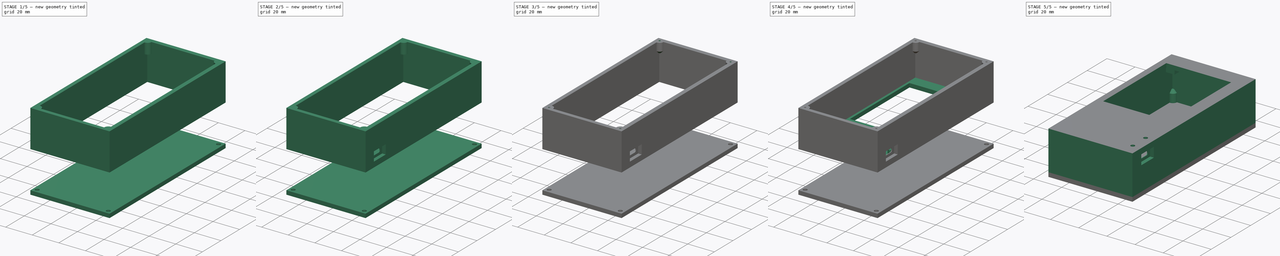
[diagram: build sequence overview — one tinted view per stage of 5, left to right]
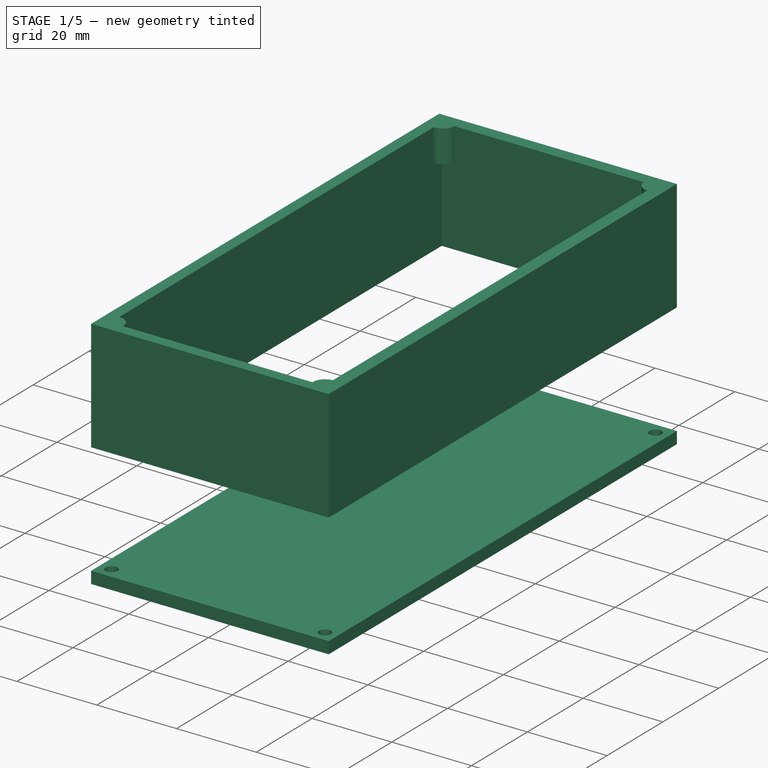
[diagram: stage 1 of 5 — iso view after this stage's code; geometry added in this stage tinted green]
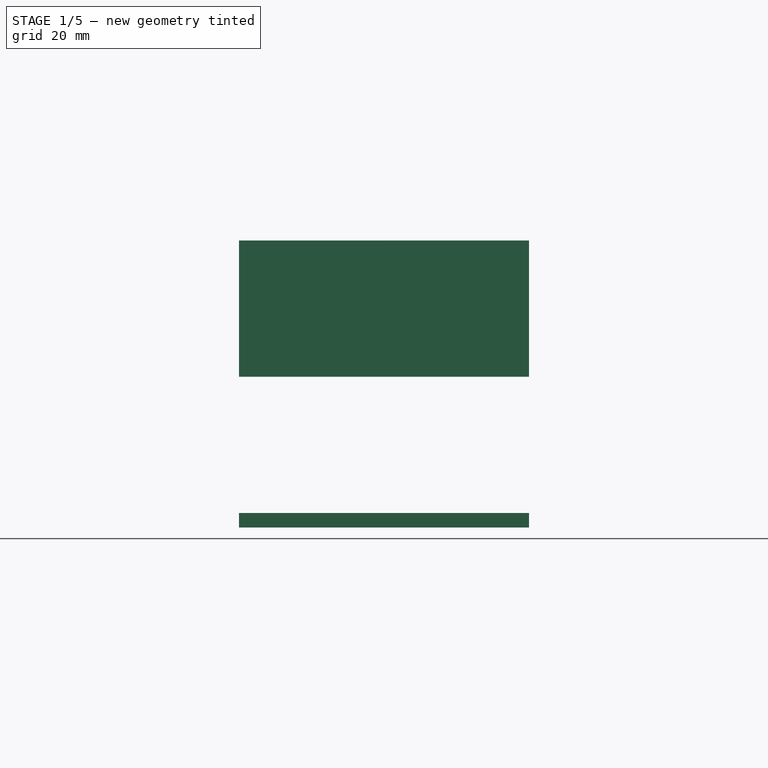
[diagram: stage 1 of 5 — front view after this stage's code; geometry added in this stage tinted green]
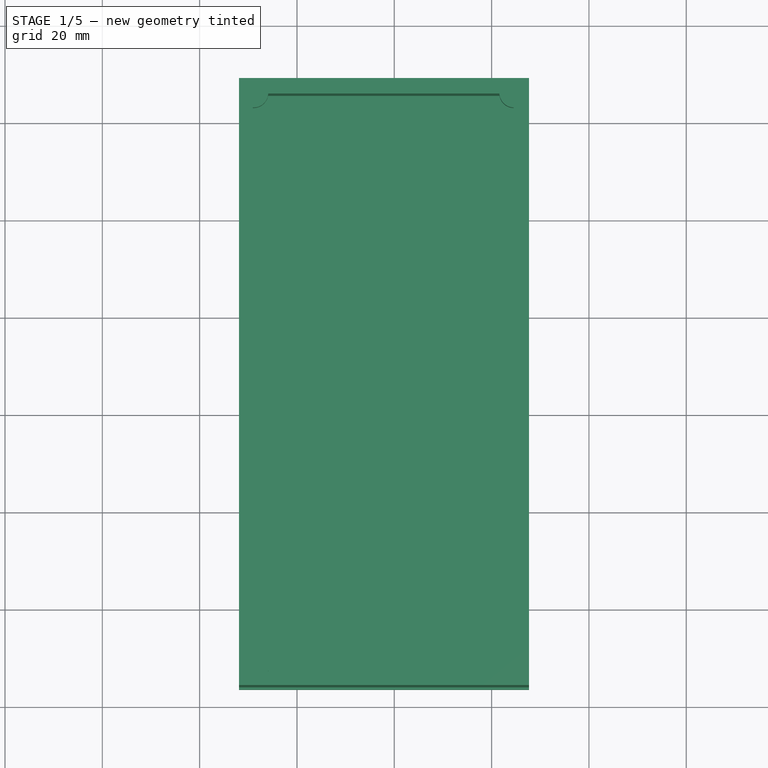
[diagram: stage 1 of 5 — top view after this stage's code; geometry added in this stage tinted green]
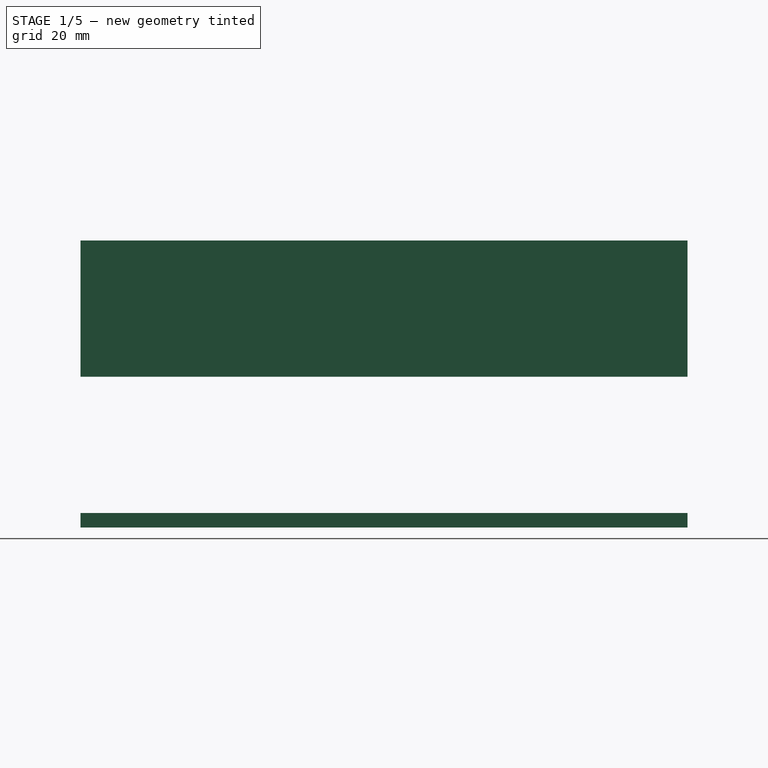
[diagram: stage 1 of 5 — right view after this stage's code; geometry added in this stage tinted green]
FCSTD DOCUMENT  (FreeCAD 0.16RUnknown)
Label: ili79341-Nodemcu
License: All rights reserved
LicenseURL: http://en.wikipedia.org/wiki/All_rights_reserved
objects: Sketcher::SketchObject×12, Part::Extrusion×10, Part::Cut×4, Part::MultiFuse×2, Part::Chamfer×1, App::DocumentObjectGroup×1, Part::Mirroring×1
note: 30 computed .brp shape members not serialized (recipe doc carries the construction recipe); baked Part::Feature solids carry a one-line shape summary decoded from their .brp

FEATURE [Sketcher::SketchObject] Sketch003  label="FrontendWalls"
  sketch-geometry (11):
    g0: GeomPoint [constr] X=35.9164 Y=125.182 Z=0
    g1: LineSegment StartX=67.688 StartY=3.55323 StartZ=0 EndX=8.08455 EndY=3.55323 EndZ=0
    g2: LineSegment StartX=8.08455 StartY=3.55323 StartZ=0 EndX=8.08455 EndY=128.301 EndZ=0
    g3: LineSegment StartX=8.08455 StartY=128.301 StartZ=0 EndX=67.688 EndY=128.301 EndZ=0
    g4: LineSegment StartX=67.688 StartY=128.301 StartZ=0 EndX=67.688 EndY=12.5045 EndZ=0
    g5: LineSegment StartX=10.913 StartY=6.38166 StartZ=0 EndX=64.517 EndY=6.38166 EndZ=0
    g6: LineSegment StartX=64.517 StartY=6.38166 StartZ=0 EndX=64.517 EndY=14.5045 EndZ=0
    g7: LineSegment StartX=64.517 StartY=125.13 StartZ=0 EndX=10.913 EndY=125.13 EndZ=0
    g8: LineSegment StartX=10.913 StartY=125.13 StartZ=0 EndX=10.913 EndY=6.38166 EndZ=0
    g9: LineSegment StartX=67.688 StartY=12.5045 StartZ=0 EndX=67.688 EndY=3.55323 EndZ=0
    g10: LineSegment StartX=64.517 StartY=14.5045 StartZ=0 EndX=64.517 EndY=125.13 EndZ=0
  constraints (22):
    c: Coincident(g1,g2)
    c: Coincident(g2,g3)
    c: Coincident(g3,g4)
    c: Coincident(g9,g1)
    c: Horizontal(g1)
    c: Horizontal(g3)
    c: Vertical(g2)
    c: Vertical(g4)
    c: DistanceX(g1,g1) = 59.6035
    c: DistanceY(g9,g4) = 124.748
    c: Coincident(g5,g6)
    c: Coincident(g10,g7)
    c: Coincident(g7,g8)
    c: Coincident(g8,g5)
    c: Horizontal(g5)
    c: Horizontal(g7)
    c: Vertical(g6)
    c: Vertical(g8)
    c: Tangent(g4,g9)
    c: Tangent(g6,g10)
    c: Coincident(g4,g9)
    c: Coincident(g6,g10)
FEATURE [Part::Extrusion] Extrude001
  Base = -> Sketch003
  Dir = (0,0,28)
  Solid = true
FEATURE [Sketcher::SketchObject] Sketch004  label="usb-input"
  Placement = pos=(0,0,4) rot=(0,0,1;0rad)
  sketch-geometry (6):
    g0: LineSegment StartX=65.0162 StartY=23.2127 StartZ=0 EndX=65.0162 EndY=25.2127 EndZ=0
    g1: LineSegment StartX=65.0162 StartY=25.2127 StartZ=0 EndX=67.688 EndY=25.2127 EndZ=0
    g2: LineSegment StartX=65.0162 StartY=14.5019 StartZ=0 EndX=65.0162 EndY=12.5019 EndZ=0
    g3: LineSegment StartX=65.0162 StartY=12.5019 StartZ=0 EndX=67.688 EndY=12.5019 EndZ=0
    g4: LineSegment StartX=67.688 StartY=25.2127 StartZ=0 EndX=67.688 EndY=12.5019 EndZ=0
    g5: LineSegment StartX=65.0162 StartY=23.2127 StartZ=0 EndX=65.0162 EndY=14.5019 EndZ=0
  constraints (15):
    c: Vertical(g0)
    c: Coincident(g1,g0)
    c: Horizontal(g1)
    c: Vertical(g2)
    c: Coincident(g3,g2)
    c: Horizontal(g3)
    c: DistanceY(g2,g2) = 2
    c: DistanceY(g0,g0) = 2
    c: Coincident(g4,g3)
    c: Vertical(g4)
    c: DistanceY(g4,g4) = 12.7108
    c: Coincident(g5,g0)
    c: Coincident(g5,g2)
    c: Vertical(g5)
    c: Coincident(g1,g4)
FEATURE [Part::Extrusion] Extrude003
  Base = -> Sketch004
  Dir = (0,0,7)
  Solid = true
FEATURE [Sketcher::SketchObject] Sketch039  label="Screw-plate"
  Placement = pos=(0,0,20) rot=(0,0,1;0rad)
  sketch-geometry (4):
    g0: Circle CenterX=11.1123 CenterY=6.56493 CenterZ=0 NormalX=0 NormalY=0 NormalZ=1 Radius=3
    g1: Circle CenterX=64.6256 CenterY=6.57305 CenterZ=0 NormalX=0 NormalY=0 NormalZ=1 Radius=3
    g2: Circle CenterX=11.0982 CenterY=125.264 CenterZ=0 NormalX=0 NormalY=0 NormalZ=1 Radius=3
    g3: Circle CenterX=64.5919 CenterY=125.261 CenterZ=0 NormalX=0 NormalY=0 NormalZ=1 Radius=3
  constraints (4):
    c: Radius(g2) = 3
    c: Radius(g3) = 3
    c: Radius(g1) = 3
    c: Radius(g0) = 3
FEATURE [Part::Extrusion] Extrude014
  Base = -> Sketch039
  Dir = (0,0,8)
  Solid = true
FEATURE [Sketcher::SketchObject] Sketch043
  sketch-geometry (9):
    g0: Circle CenterX=11.0731 CenterY=6.58019 CenterZ=0 NormalX=0 NormalY=0 NormalZ=1 Radius=1.5
    g1: Circle CenterX=64.6617 CenterY=6.5442 CenterZ=0 NormalX=0 NormalY=0 NormalZ=1 Radius=1.5
    g2: Circle CenterX=11.0879 CenterY=125.308 CenterZ=0 NormalX=0 NormalY=0 NormalZ=1 Radius=1.5
    g3: Circle CenterX=64.5669 CenterY=125.115 CenterZ=0 NormalX=0 NormalY=0 NormalZ=1 Radius=1.5
    g4: LineSegment StartX=67.688 StartY=3.55323 StartZ=0 EndX=8.08455 EndY=3.55323 EndZ=0
    g5: LineSegment StartX=8.08455 StartY=3.55323 StartZ=0 EndX=8.08455 EndY=128.301 EndZ=0
    g6: LineSegment StartX=8.08455 StartY=128.301 StartZ=0 EndX=67.688 EndY=128.301 EndZ=0
    g7: LineSegment StartX=67.688 StartY=128.301 StartZ=0 EndX=67.688 EndY=12.5045 EndZ=0
    g8: LineSegment StartX=67.688 StartY=12.5045 StartZ=0 EndX=67.688 EndY=3.55323 EndZ=0
  constraints (16):
    c: Radius(g0) = 1.5
    c: Radius(g1) = 1.5
    c: Radius(g2) = 1.5
    c: Radius(g3) = 1.5
    c: Coincident(g4,g5)
    c: Coincident(g5,g6)
    c: Coincident(g6,g7)
    c: Coincident(g8,g4)
    c: Horizontal(g4)
    c: Horizontal(g6)
    c: Vertical(g5)
    c: Vertical(g7)
    c: DistanceX(g4,g4) = 59.6035
    c: DistanceY(g8,g7) = 124.748
    c: Tangent(g7,g8)
    c: Coincident(g7,g8)
FEATURE [Part::Extrusion] Extrude016  label="Backplate"
  Base = -> Sketch043
  Dir = (0,0,3)
  Placement = pos=(0,0,-31) rot=(0,0,1;0rad)
  Solid = true
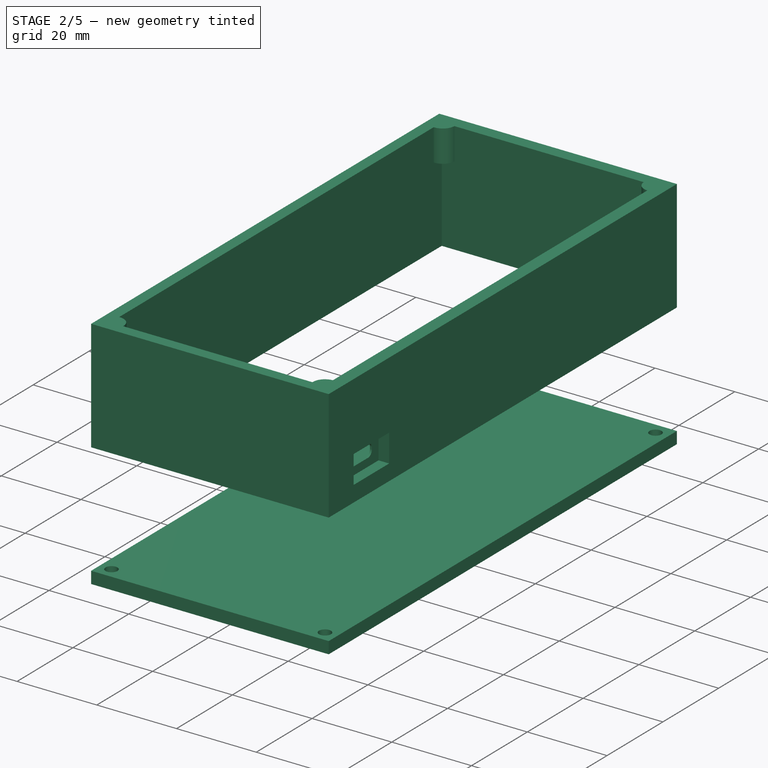
[diagram: stage 2 of 5 — iso view after this stage's code; geometry added in this stage tinted green]
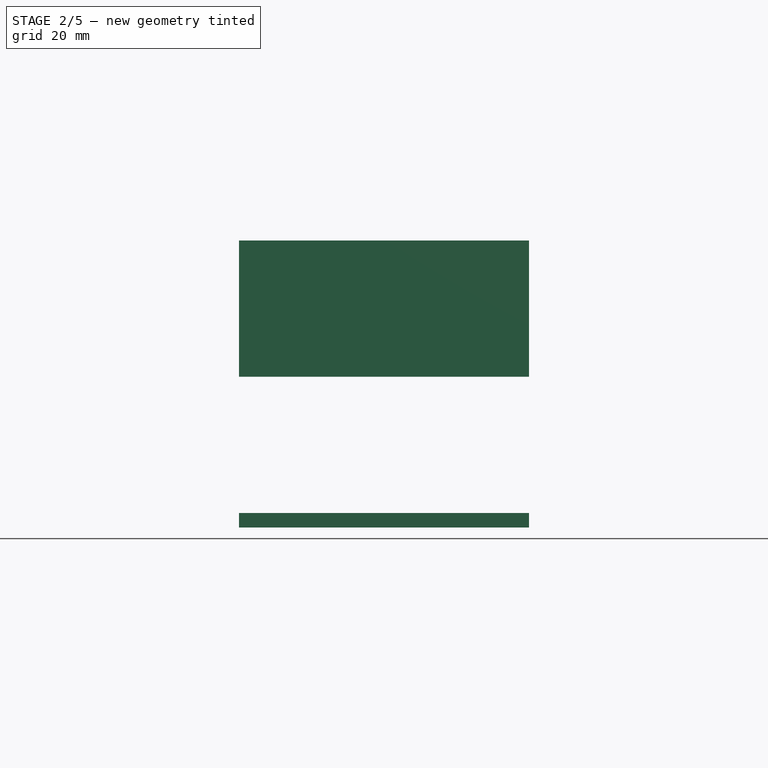
[diagram: stage 2 of 5 — front view after this stage's code; geometry added in this stage tinted green]
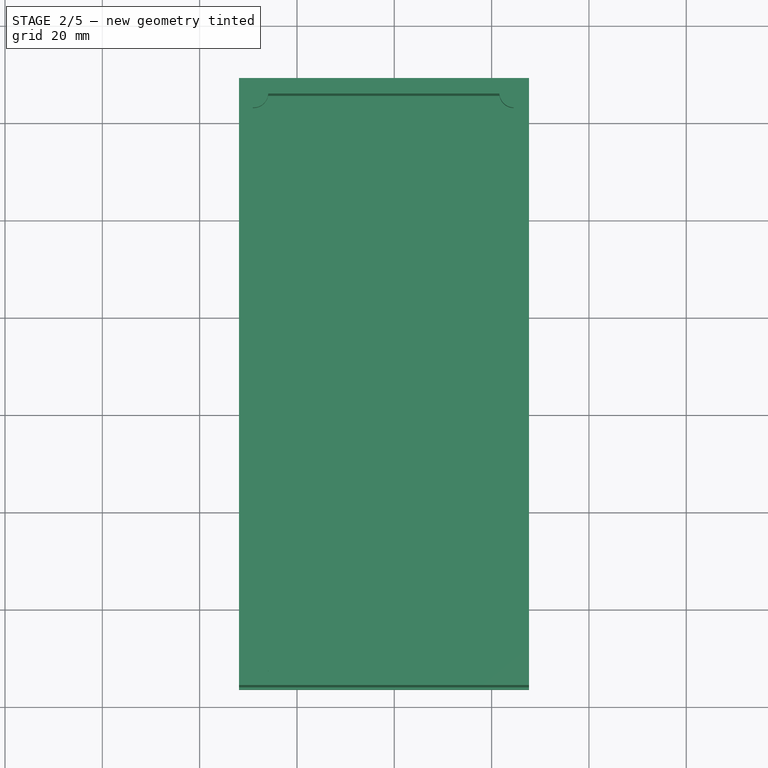
[diagram: stage 2 of 5 — top view after this stage's code; geometry added in this stage tinted green]
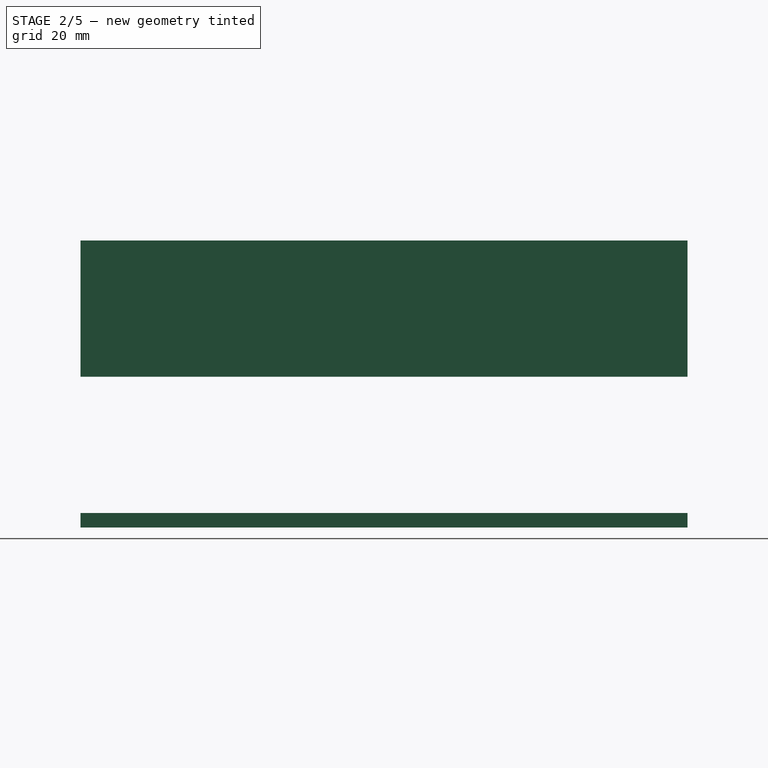
[diagram: stage 2 of 5 — right view after this stage's code; geometry added in this stage tinted green]
FEATURE [Sketcher::SketchObject] Sketch031  label="Usb-microB"
  Placement = pos=(61,14.84,6) rot=(0.57735,0.57735,0.57735;2.0944rad)
  sketch-geometry (8):
    g0: LineSegment StartX=6.85371 StartY=3.00447 StartZ=0 EndX=1.14803 EndY=3.00447 EndZ=0
    g1: LineSegment StartX=-0.00271516 StartY=1.85373 StartZ=0 EndX=-0.00271516 EndY=1.4004 EndZ=0
    g2: LineSegment StartX=1.38664 StartY=0.0110434 StartZ=0 EndX=6.6151 EndY=0.0110434 EndZ=0
    g3: LineSegment StartX=8.00445 StartY=1.4004 StartZ=0 EndX=8.00445 EndY=1.85373 EndZ=0
    g4: ArcOfCircle CenterX=6.6151 CenterY=1.4004 CenterZ=0 NormalX=0 NormalY=0 NormalZ=1 Radius=1.38935 StartAngle=4.71239 EndAngle=6.28319
    g5: ArcOfCircle CenterX=1.38664 CenterY=1.4004 CenterZ=0 NormalX=0 NormalY=0 NormalZ=1 Radius=1.38935 StartAngle=3.14159 EndAngle=4.71239
    g6: ArcOfCircle CenterX=1.14803 CenterY=1.85373 CenterZ=0 NormalX=0 NormalY=0 NormalZ=1 Radius=1.15074 StartAngle=1.5708 EndAngle=3.14159
    g7: ArcOfCircle CenterX=6.85371 CenterY=1.85373 CenterZ=0 NormalX=0 NormalY=0 NormalZ=1 Radius=1.15074 StartAngle=0 EndAngle=1.5708
  constraints (17):
    c: Horizontal(g0)
    c: Horizontal(g2)
    c: Vertical(g1)
    c: Vertical(g3)
    c: Tangent(g3,g4) = -1.5708
    c: Tangent(g2,g4) = -1.5708
    c: Tangent(g2,g5) = -1.5708
    c: Tangent(g1,g5) = -1.5708
    c: Tangent(g0,g6) = -1.5708
    c: Tangent(g1,g6) = -1.5708
    c: Tangent(g0,g7) = -1.5708
    c: Tangent(g3,g7) = -1.5708
    c: DistanceY(g5,g4) = 0
    c: DistanceY(g6,g7) = 0
    c: DistanceY(g2,g0) = 2.99343
    c: DistanceX(g1,g3) = 8.00717
    c: DistanceX(g2,g2) = 5.22846
FEATURE [Part::Extrusion] Extrude006
  Base = -> Sketch031
  Dir = (10,0,0)
  Solid = true
FEATURE [Part::Cut] Cut  label="Walls"
  Base = -> Extrude001
  Tool = -> Extrude003
FEATURE [Part::Cut] Cut001
  Base = -> Cut
  Tool = -> Extrude006
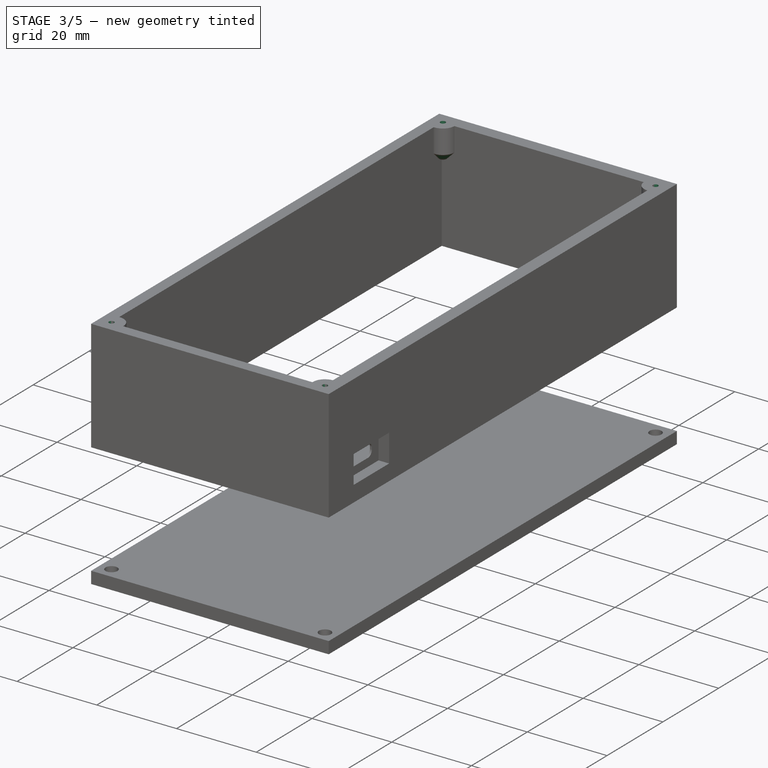
[diagram: stage 3 of 5 — iso view after this stage's code; geometry added in this stage tinted green]
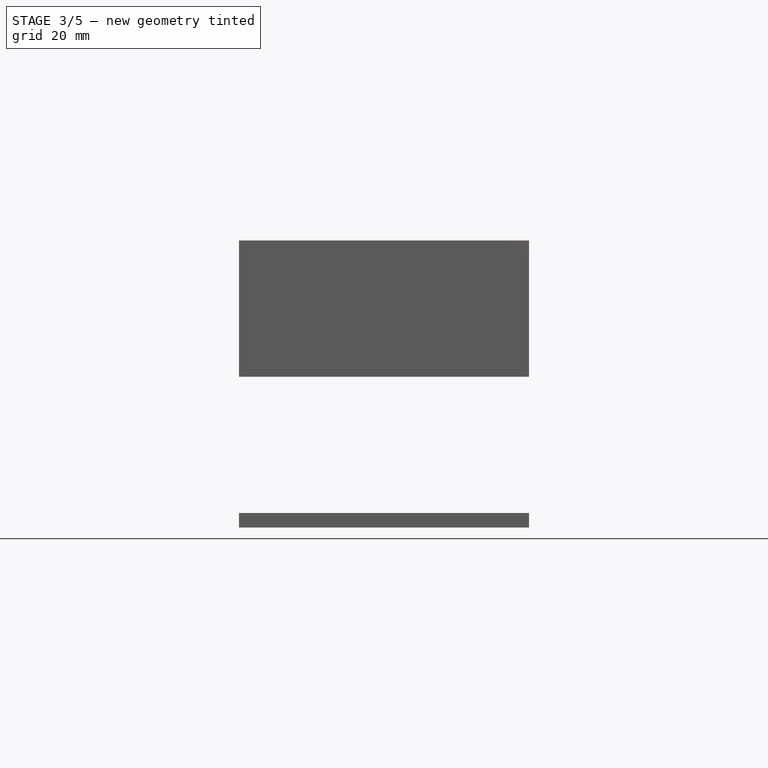
[diagram: stage 3 of 5 — front view after this stage's code; geometry added in this stage tinted green]
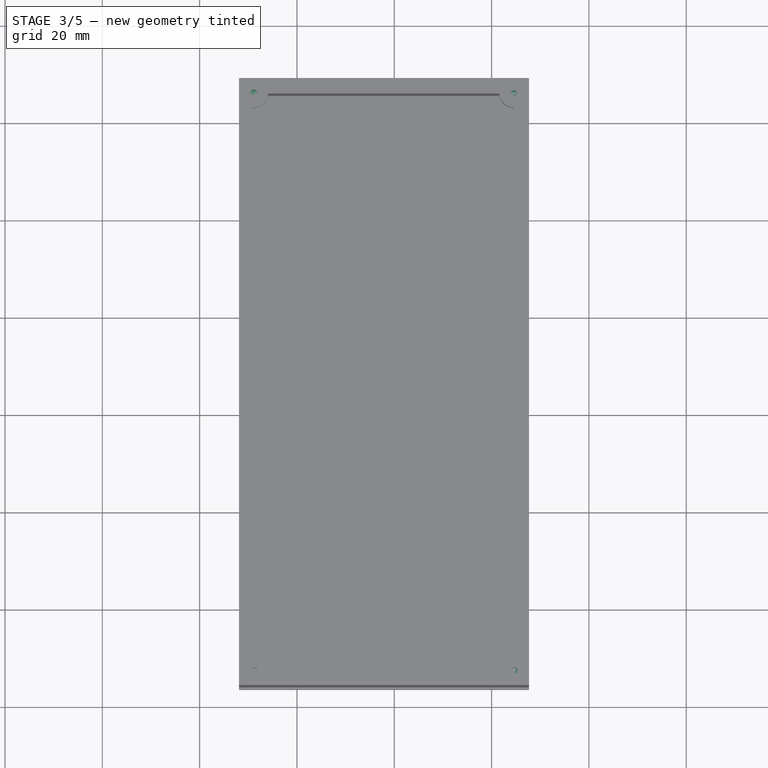
[diagram: stage 3 of 5 — top view after this stage's code; geometry added in this stage tinted green]
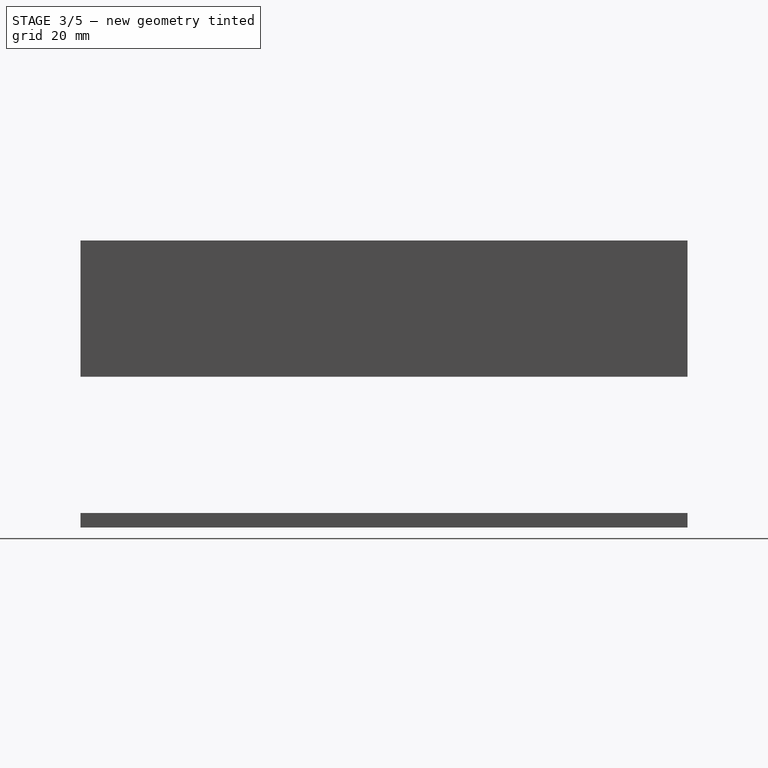
[diagram: stage 3 of 5 — right view after this stage's code; geometry added in this stage tinted green]
FEATURE [Sketcher::SketchObject] Sketch040  label="Screw-plate-holes"
  Placement = pos=(0,0,24) rot=(0,0,1;0rad)
  sketch-geometry (4):
    g0: Circle CenterX=11.0731 CenterY=6.58019 CenterZ=0 NormalX=0 NormalY=0 NormalZ=1 Radius=0.65
    g1: Circle CenterX=64.6617 CenterY=6.5442 CenterZ=0 NormalX=0 NormalY=0 NormalZ=1 Radius=0.65
    g2: Circle CenterX=11.0879 CenterY=125.308 CenterZ=0 NormalX=0 NormalY=0 NormalZ=1 Radius=0.65
    g3: Circle CenterX=64.5669 CenterY=125.115 CenterZ=0 NormalX=0 NormalY=0 NormalZ=1 Radius=0.65
  constraints (4):
    c: Radius(g0) = 0.65
    c: Radius(g1) = 0.65
    c: Radius(g2) = 0.65
    c: Radius(g3) = 0.65
FEATURE [Part::Extrusion] Extrude015
  Base = -> Sketch040
  Dir = (0,0,5)
  Solid = true
FEATURE [Part::MultiFuse] Fusion
  Shapes = -> [Extrude014,Cut001]
FEATURE [Part::Cut] Cut003
  Base = -> Fusion
  Tool = -> Extrude015
FEATURE [Part::Chamfer] Chamfer  label="Chamfer-Walls"
  Base = -> Cut003
  Edges = 4 edges r=2: [Edge106,Edge111,Edge112,Edge122]
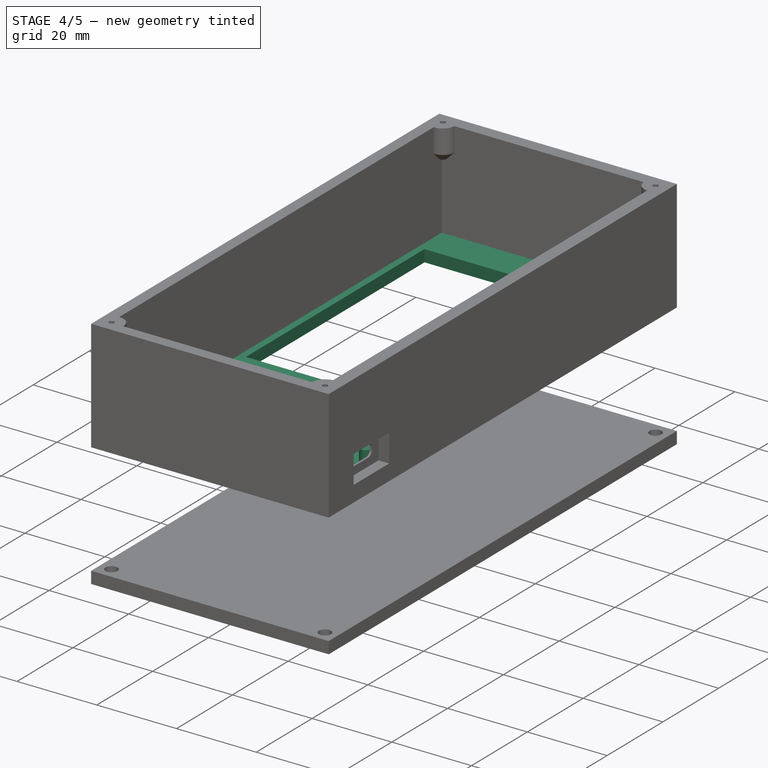
[diagram: stage 4 of 5 — iso view after this stage's code; geometry added in this stage tinted green]
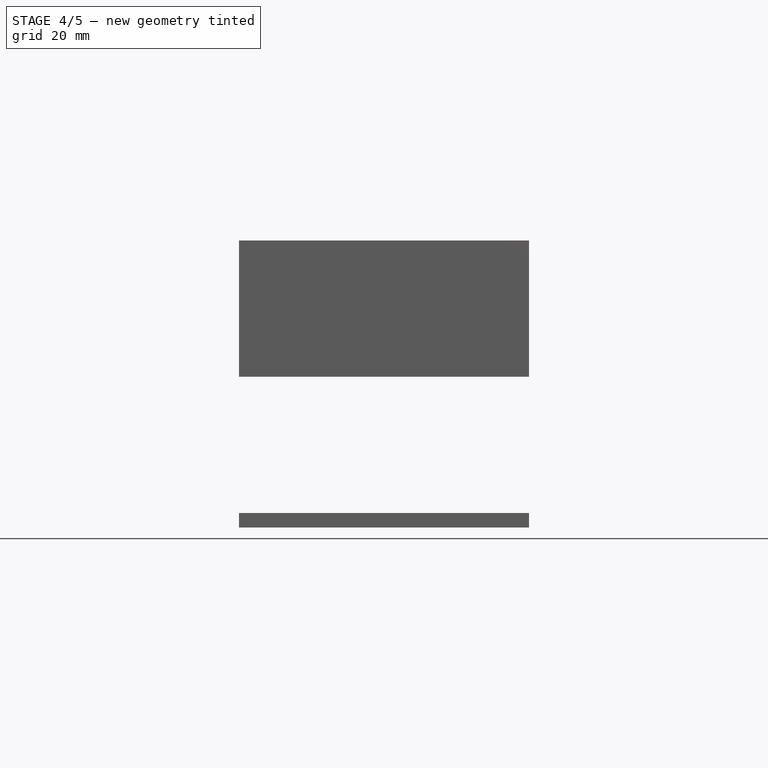
[diagram: stage 4 of 5 — front view after this stage's code; geometry added in this stage tinted green]
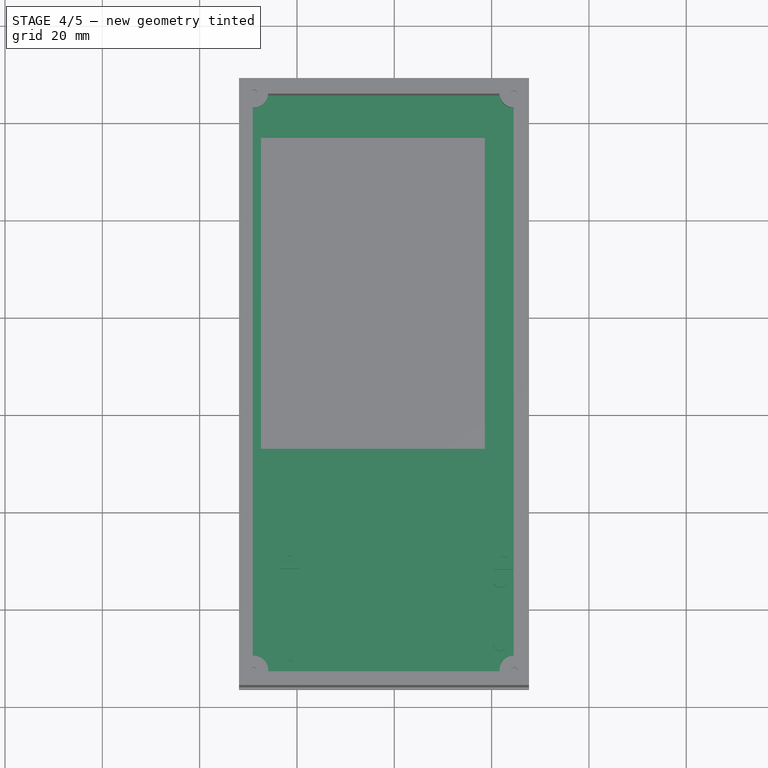
[diagram: stage 4 of 5 — top view after this stage's code; geometry added in this stage tinted green]
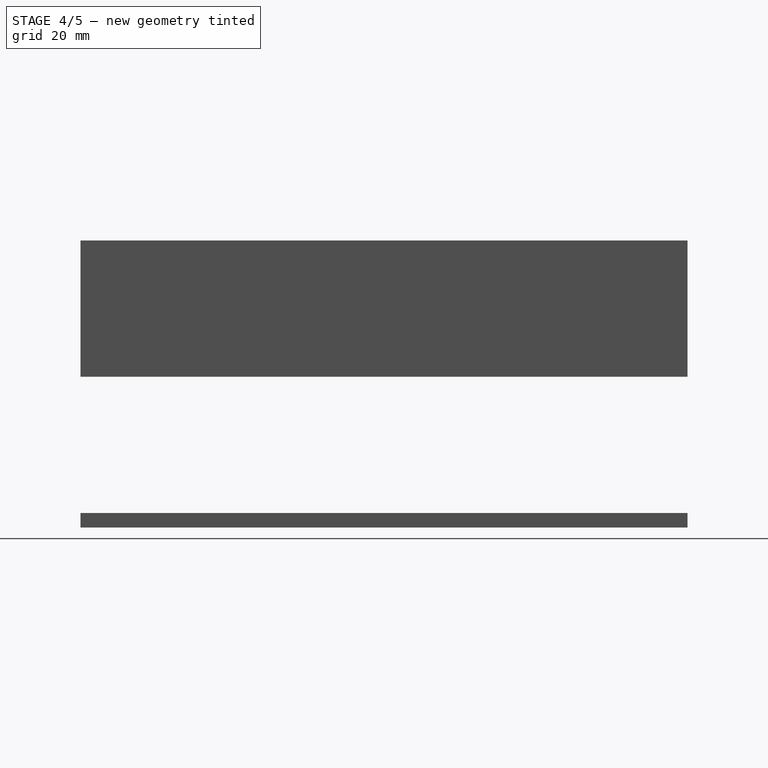
[diagram: stage 4 of 5 — right view after this stage's code; geometry added in this stage tinted green]
FEATURE [Sketcher::SketchObject] Sketch  label="Screen-measures"
  sketch-geometry (11):
    g0: LineSegment StartX=10.7757 StartY=124.553 StartZ=0 EndX=60.7757 EndY=124.553 EndZ=0
    g1: LineSegment StartX=60.7757 StartY=124.553 StartZ=0 EndX=60.7757 EndY=38.553 EndZ=0
    g2: LineSegment StartX=60.7757 StartY=38.553 StartZ=0 EndX=10.7757 EndY=38.553 EndZ=0
    g3: LineSegment StartX=10.7757 StartY=38.553 StartZ=0 EndX=10.7757 EndY=124.553 EndZ=0
    g4: LineSegment StartX=64.0627 StartY=119.495 StartZ=0 EndX=110.063 EndY=119.495 EndZ=0
    g5: LineSegment StartX=110.063 StartY=119.495 StartZ=0 EndX=110.063 EndY=55.4953 EndZ=0
    g6: LineSegment StartX=110.063 StartY=55.4953 StartZ=0 EndX=64.0627 EndY=55.4953 EndZ=0
    g7: LineSegment StartX=64.0627 StartY=55.4953 StartZ=0 EndX=64.0627 EndY=119.495 EndZ=0
    g8: Circle CenterX=13.8762 CenterY=122.415 CenterZ=0 NormalX=0 NormalY=0 NormalZ=1 Radius=1.6
    g9: Circle CenterX=13.8762 CenterY=46.4147 CenterZ=0 NormalX=0 NormalY=0 NormalZ=1 Radius=1.6
    g10: Circle CenterX=57.8762 CenterY=122.415 CenterZ=0 NormalX=0 NormalY=0 NormalZ=1 Radius=1.6
  constraints (27):
    c: Coincident(g0,g1)
    c: Coincident(g1,g2)
    c: Coincident(g2,g3)
    c: Coincident(g3,g0)
    c: Horizontal(g0)
    c: Horizontal(g2)
    c: Vertical(g1)
    c: Vertical(g3)
    c: DistanceY(g3,g3) = 86
    c: DistanceX(g2,g2) = 50
    c: Coincident(g4,g5)
    c: Coincident(g5,g6)
    c: Coincident(g6,g7)
    c: Coincident(g7,g4)
    c: Horizontal(g4)
    c: Horizontal(g6)
    c: Vertical(g5)
    c: Vertical(g7)
    c: DistanceX(g4,g4) = 46
    c: DistanceY(g5,g5) = 64
    c: DistanceY(g9,g8) = 76
    c: DistanceX(g8,g10) = 44
    c: DistanceY(g8,g10) = 0
    c: DistanceX(g9,g8) = 0
    c: Radius(g8) = 1.6
    c: Radius(g10) = 1.6
    c: Radius(g9) = 1.6
FEATURE [Sketcher::SketchObject] Sketch001  label="Hardware"
  sketch-geometry (25):
    g0: LineSegment StartX=10.9164 StartY=125.182 StartZ=0 EndX=60.9164 EndY=125.182 EndZ=0
    g1: LineSegment StartX=60.9164 StartY=125.182 StartZ=0 EndX=60.9164 EndY=39.1818 EndZ=0
    g2: LineSegment StartX=60.9164 StartY=39.1818 StartZ=0 EndX=10.9164 EndY=39.1818 EndZ=0
    g3: LineSegment StartX=10.9164 StartY=39.1818 StartZ=0 EndX=10.9164 EndY=125.182 EndZ=0
    g4: LineSegment StartX=12.6164 StartY=116.53 StartZ=0 EndX=58.6164 EndY=116.53 EndZ=0
    g5: LineSegment StartX=58.6164 StartY=116.53 StartZ=0 EndX=58.6164 EndY=52.5296 EndZ=0
    g6: LineSegment StartX=58.6164 StartY=52.5296 StartZ=0 EndX=12.6164 EndY=52.5296 EndZ=0
    g7: LineSegment StartX=12.6164 StartY=52.5296 StartZ=0 EndX=12.6164 EndY=116.53 EndZ=0
    g8: Circle CenterX=13.9164 CenterY=122.182 CenterZ=0 NormalX=0 NormalY=0 NormalZ=1 Radius=1.6
    g9: Circle CenterX=13.9164 CenterY=46.1818 CenterZ=0 NormalX=0 NormalY=0 NormalZ=1 Radius=1.6
    g10: Circle CenterX=57.9164 CenterY=122.182 CenterZ=0 NormalX=0 NormalY=0 NormalZ=1 Radius=1.6
    g11: LineSegment StartX=10.9164 StartY=118.582 StartZ=0 EndX=60.9164 EndY=118.582 EndZ=0
    g12: LineSegment StartX=60.9164 StartY=118.582 StartZ=0 EndX=60.9164 EndY=49.3818 EndZ=0
    g13: LineSegment StartX=60.9164 StartY=49.3818 StartZ=0 EndX=10.9164 EndY=49.3818 EndZ=0
    g14: LineSegment StartX=10.9164 StartY=49.3818 StartZ=0 EndX=10.9164 EndY=118.582 EndZ=0
    g15: GeomPoint [constr] X=35.9164 Y=125.182 Z=0
    g16: Circle CenterX=57.9164 CenterY=46.1818 CenterZ=0 NormalX=0 NormalY=0 NormalZ=1 Radius=1.6
    g17: LineSegment StartX=5.10165 StartY=31.7818 StartZ=0 EndX=64.5164 EndY=31.7818 EndZ=0
    g18: LineSegment StartX=64.5164 StartY=31.7818 StartZ=0 EndX=64.5164 EndY=6.38178 EndZ=0
    g19: LineSegment StartX=64.5164 StartY=6.38178 StartZ=0 EndX=5.10165 EndY=6.38178 EndZ=0
    g20: LineSegment StartX=5.10165 StartY=6.38178 StartZ=0 EndX=5.10165 EndY=31.7818 EndZ=0
    g21: LineSegment StartX=71.7745 StartY=22.8451 StartZ=0 EndX=63.439 EndY=22.8451 EndZ=0
    g22: LineSegment StartX=63.439 StartY=22.8451 StartZ=0 EndX=63.439 EndY=14.8451 EndZ=0
    g23: LineSegment StartX=63.439 StartY=14.8451 StartZ=0 EndX=71.7745 EndY=14.8451 EndZ=0
    g24: LineSegment StartX=71.7745 StartY=14.8451 StartZ=0 EndX=71.7745 EndY=22.8451 EndZ=0
  constraints (68):
    c: Coincident(g0,g1)
    c: Coincident(g1,g2)
    c: Coincident(g2,g3)
    c: Coincident(g3,g0)
    c: Horizontal(g0)
    c: Horizontal(g2)
    c: Vertical(g1)
    c: Vertical(g3)
    c: DistanceY(g3,g3) = 86
    c: DistanceX(g2,g2) = 50
    c: Coincident(g4,g5)
    c: Coincident(g5,g6)
    c: Coincident(g6,g7)
    c: Coincident(g7,g4)
    c: Horizontal(g4)
    c: Horizontal(g6)
    c: Vertical(g5)
    c: Vertical(g7)
    c: DistanceX(g4,g4) = 46
    c: DistanceY(g5,g5) = 64
    c: DistanceY(g9,g8) = 76
    c: DistanceX(g8,g10) = 44
    c: DistanceY(g8,g10) = 0
    c: DistanceX(g9,g8) = 0
    c: Radius(g8) = 1.6
    c: Radius(g10) = 1.6
    c: Radius(g9) = 1.6
    c: Coincident(g11,g12)
    c: Coincident(g12,g13)
    c: Coincident(g13,g14)
    c: Coincident(g14,g11)
    c: Horizontal(g11)
    c: Horizontal(g13)
    c: Vertical(g12)
    c: Vertical(g14)
    c: DistanceY(g12,g12) = 69.2
    c: DistanceX(g11,g11) = 50
    c: DistanceY(g11,g0) = 6.6
    c: DistanceX(g11,g0) = 0
    c: PointOnObject(g15,g0)
    c: DistanceX(g0,g15) = 25
    c: DistanceX(g0,g8) = 3
    c: DistanceY(g8,g0) = 3
    c: DistanceX(g5,g12) = 2.3
    c: Radius(g16) = 1.6
    c: DistanceX(g9,g16) = 44
    c: DistanceY(g16,g9) = 0
    c: Coincident(g17,g18)
    c: Coincident(g18,g19)
    c: Coincident(g19,g20)
    c: Coincident(g20,g17)
    c: Horizontal(g17)
    c: Horizontal(g19)
    c: Vertical(g18)
    c: Vertical(g20)
    c: DistanceY(g17,g1) = 7.4
    c: DistanceY(g18,g18) = 25.4
    c: DistanceX(g1,g17) = 3.6
    c: Coincident(g21,g22)
    c: Coincident(g22,g23)
    c: Coincident(g23,g24)
    c: Coincident(g24,g21)
    c: Horizontal(g21)
    c: Horizontal(g23)
    c: Vertical(g22)
    c: Vertical(g24)
    c: DistanceY(g24,g24) = 8
    c: Symmetric(g18,g17,g24)
FEATURE [Sketcher::SketchObject] Sketch002  label="Frontend"
  sketch-geometry (9):
    g0: LineSegment StartX=12.6164 StartY=116.53 StartZ=0 EndX=58.6164 EndY=116.53 EndZ=0
    g1: LineSegment StartX=58.6164 StartY=116.53 StartZ=0 EndX=58.6164 EndY=52.5296 EndZ=0
    g2: LineSegment StartX=58.6164 StartY=52.5296 StartZ=0 EndX=12.6164 EndY=52.5296 EndZ=0
    g3: LineSegment StartX=12.6164 StartY=52.5296 StartZ=0 EndX=12.6164 EndY=116.53 EndZ=0
    g4: GeomPoint [constr] X=35.9164 Y=125.182 Z=0
    g5: LineSegment StartX=64.5165 StartY=6.38166 StartZ=0 EndX=10.913 EndY=6.38166 EndZ=0
    g6: LineSegment StartX=10.913 StartY=6.38166 StartZ=0 EndX=10.913 EndY=125.13 EndZ=0
    g7: LineSegment StartX=10.913 StartY=125.13 StartZ=0 EndX=64.5165 EndY=125.13 EndZ=0
    g8: LineSegment StartX=64.5165 StartY=125.13 StartZ=0 EndX=64.5165 EndY=6.38166 EndZ=0
  constraints (20):
    c: Coincident(g0,g1)
    c: Coincident(g1,g2)
    c: Coincident(g2,g3)
    c: Coincident(g3,g0)
    c: Horizontal(g0)
    c: Horizontal(g2)
    c: Vertical(g1)
    c: Vertical(g3)
    c: DistanceX(g0,g0) = 46
    c: DistanceY(g1,g1) = 64
    c: Coincident(g5,g6)
    c: Coincident(g6,g7)
    c: Coincident(g7,g8)
    c: Coincident(g8,g5)
    c: Horizontal(g5)
    c: Horizontal(g7)
    c: Vertical(g6)
    c: Vertical(g8)
    c: DistanceX(g5,g5) = 53.6035
    c: DistanceY(g8,g8) = 118.748
FEATURE [Part::Extrusion] Extrude
  Base = -> Sketch002
  Dir = (0,0,3)
  Solid = true
FEATURE [Sketcher::SketchObject] Sketch034  label="Reset-holes"
  sketch-geometry (6):
    g0: Circle CenterX=61.7197 CenterY=25.3949 CenterZ=0 NormalX=0 NormalY=0 NormalZ=1 Radius=1.4
    g1: GeomPoint [constr] X=64.5197 Y=25.4435 Z=0
    g2: GeomPoint [constr] X=62.1874 Y=31.3949 Z=0
    g3: Circle CenterX=61.719 CenterY=12.4045 CenterZ=0 NormalX=0 NormalY=0 NormalZ=1 Radius=1.4
    g4: GeomPoint [constr] X=64.519 Y=12.411 Z=0
    g5: GeomPoint [constr] X=61.5399 Y=6.40451 Z=0
  constraints (6):
    c: Radius(g0) = 1.4
    c: DistanceX(g0,g1) = 2.8
    c: DistanceY(g0,g2) = 6
    c: Radius(g3) = 1.4
    c: DistanceX(g3,g4) = 2.8
    c: DistanceY(g5,g3) = 6
FEATURE [Part::Extrusion] Extrude010
  Base = -> Sketch034
  Dir = (0,0,6)
  Solid = true
FEATURE [Sketcher::SketchObject] Sketch038  label="Nodemcufitter"
  sketch-geometry (21):
    g0: LineSegment StartX=20.508 StartY=31.8172 StartZ=0 EndX=16.508 EndY=31.8172 EndZ=0
    g1: LineSegment StartX=16.508 StartY=31.8172 StartZ=0 EndX=16.508 EndY=27.8172 EndZ=0
    g2: LineSegment StartX=16.508 StartY=27.8172 StartZ=0 EndX=20.508 EndY=27.8172 EndZ=0
    g3: LineSegment StartX=20.508 StartY=27.8172 StartZ=0 EndX=20.508 EndY=31.8172 EndZ=0
    g4: Circle CenterX=18.508 CenterY=29.8172 CenterZ=0 NormalX=0 NormalY=0 NormalZ=1 Radius=0.65
    g5: LineSegment StartX=20.508 StartY=10.4246 StartZ=0 EndX=16.508 EndY=10.4246 EndZ=0
    g6: LineSegment StartX=16.508 StartY=10.4246 StartZ=0 EndX=16.508 EndY=6.42456 EndZ=0
    g7: LineSegment StartX=16.508 StartY=6.42456 StartZ=0 EndX=20.508 EndY=6.42456 EndZ=0
    g8: LineSegment StartX=20.508 StartY=6.42456 StartZ=0 EndX=20.508 EndY=10.4246 EndZ=0
    g9: Circle CenterX=18.508 CenterY=8.42456 CenterZ=0 NormalX=0 NormalY=0 NormalZ=1 Radius=0.65
    g10: GeomPoint [constr] X=64.508 Y=29.0738 Z=0
    g11: LineSegment StartX=64.5063 StartY=31.7578 StartZ=0 EndX=60.5063 EndY=31.7578 EndZ=0
    g12: LineSegment StartX=60.5063 StartY=31.7578 StartZ=0 EndX=60.5063 EndY=27.7578 EndZ=0
    g13: LineSegment StartX=60.5063 StartY=27.7578 StartZ=0 EndX=64.5063 EndY=27.7578 EndZ=0
    g14: LineSegment StartX=64.5063 StartY=27.7578 StartZ=0 EndX=64.5063 EndY=31.7578 EndZ=0
    g15: Circle CenterX=62.4862 CenterY=29.7743 CenterZ=0 NormalX=0 NormalY=0 NormalZ=1 Radius=0.65
    g16: LineSegment StartX=64.4477 StartY=10.4109 StartZ=0 EndX=60.4477 EndY=10.4109 EndZ=0
    g17: LineSegment StartX=60.4477 StartY=10.4109 StartZ=0 EndX=60.4477 EndY=6.41087 EndZ=0
    g18: LineSegment StartX=60.4477 StartY=6.41087 StartZ=0 EndX=64.4477 EndY=6.41087 EndZ=0
    g19: LineSegment StartX=64.4477 StartY=6.41087 StartZ=0 EndX=64.4477 EndY=10.4109 EndZ=0
    g20: Circle CenterX=62.4524 CenterY=8.42456 CenterZ=0 NormalX=0 NormalY=0 NormalZ=1 Radius=0.65
  constraints (50):
    c: Coincident(g0,g1)
    c: Coincident(g1,g2)
    c: Coincident(g2,g3)
    c: Coincident(g3,g0)
    c: Horizontal(g0)
    c: Horizontal(g2)
    c: Vertical(g1)
    c: Vertical(g3)
    c: DistanceY(g1,g1) = 4
    c: DistanceX(g2,g2) = 4
    c: Radius(g4) = 0.65
    c: Coincident(g5,g6)
    c: Coincident(g6,g7)
    c: Coincident(g7,g8)
    c: Coincident(g8,g5)
    c: Horizontal(g5)
    c: Horizontal(g7)
    c: Vertical(g6)
    c: Vertical(g8)
    c: DistanceX(g5,g5) = 4
    c: DistanceY(g6,g6) = 4
    c: Radius(g9) = 0.65
    c: DistanceY(g1,g4) = 2
    c: DistanceX(g0,g4) = 2
    c: DistanceY(g9,g5) = 2
    c: DistanceX(g6,g9) = 2
    c: DistanceX(g4,g10) = 46
    c: DistanceX(g9,g10) = 46
    c: Coincident(g11,g12)
    c: Coincident(g12,g13)
    c: Coincident(g13,g14)
    c: Coincident(g14,g11)
    c: Horizontal(g11)
    c: Horizontal(g13)
    c: Vertical(g12)
    c: Vertical(g14)
    c: DistanceY(g12,g12) = 4
    c: DistanceX(g13,g13) = 4
    c: Radius(g15) = 0.65
    c: Coincident(g16,g17)
    c: Coincident(g17,g18)
    c: Coincident(g18,g19)
    c: Coincident(g19,g16)
    c: Horizontal(g16)
    c: Horizontal(g18)
    c: Vertical(g17)
    c: Vertical(g19)
    c: DistanceX(g16,g16) = 4
    c: DistanceY(g17,g17) = 4
    c: Radius(g20) = 0.65
FEATURE [Part::Extrusion] Extrude012  label="Extrude-nodemcufitter"
  Base = -> Sketch038
  Dir = (0,0,5.62)
  Solid = true
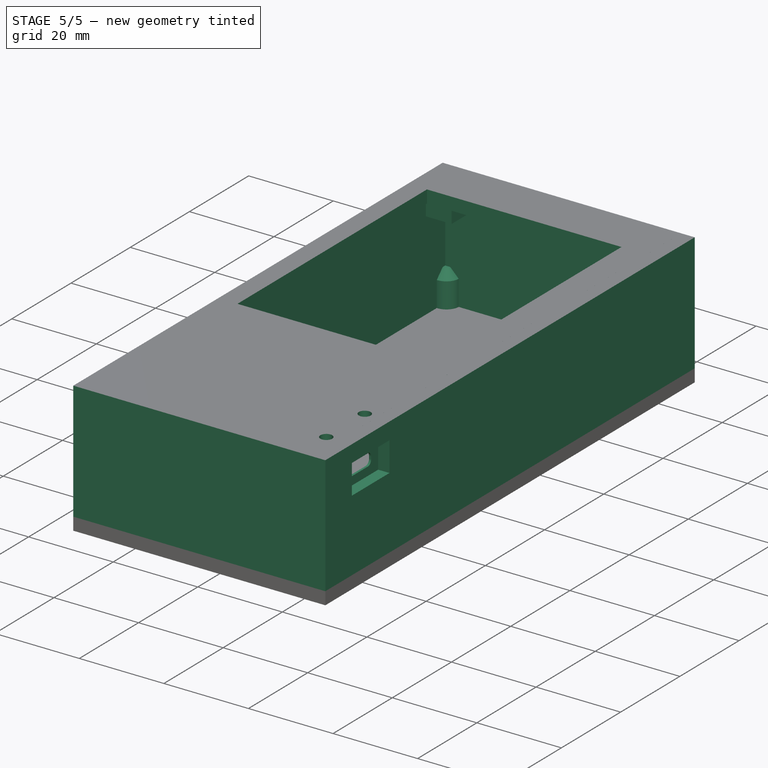
[diagram: stage 5 of 5 — iso view after this stage's code; geometry added in this stage tinted green]
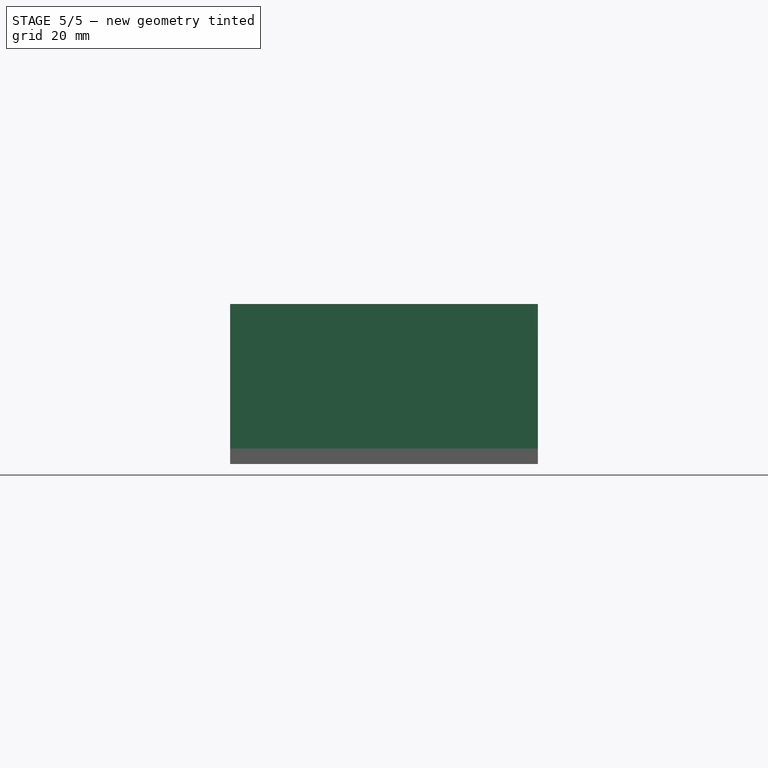
[diagram: stage 5 of 5 — front view after this stage's code; geometry added in this stage tinted green]
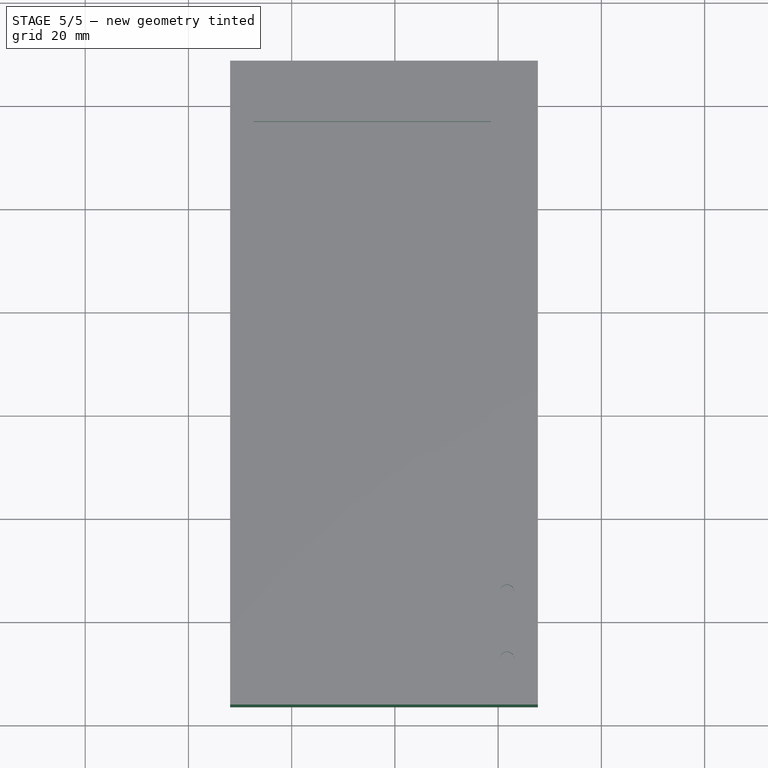
[diagram: stage 5 of 5 — top view after this stage's code; geometry added in this stage tinted green]
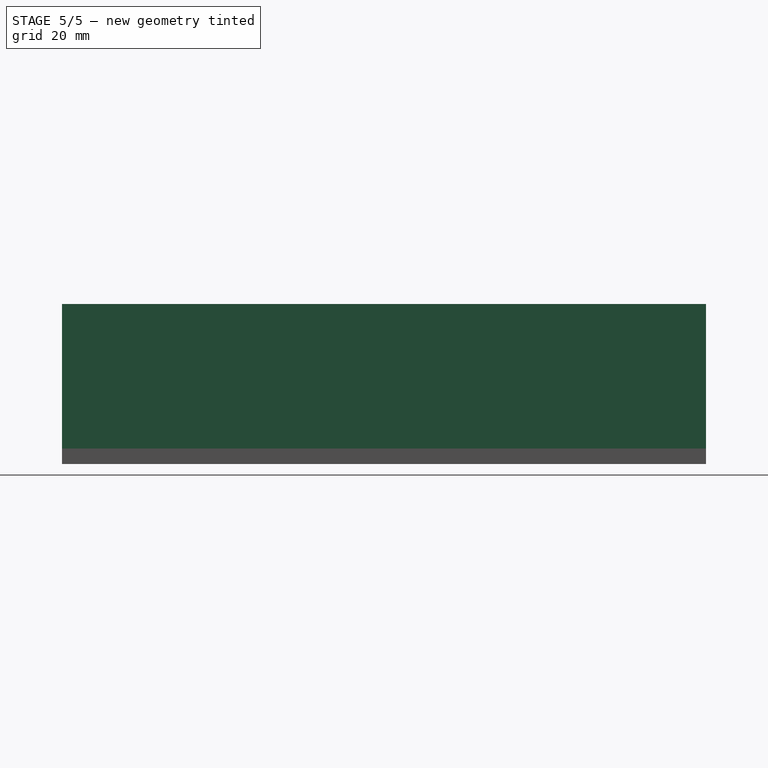
[diagram: stage 5 of 5 — right view after this stage's code; geometry added in this stage tinted green]
FEATURE [Sketcher::SketchObject] Sketch032  label="Screen-fitter"
  Placement = pos=(0,0,3) rot=(0,0,1;0rad)
  sketch-geometry (20):
    g0: LineSegment StartX=10.8327 StartY=49.3129 StartZ=0 EndX=17.1252 EndY=49.3129 EndZ=0
    g1: LineSegment StartX=17.1252 StartY=49.3129 StartZ=0 EndX=17.1252 EndY=42.9884 EndZ=0
    g2: LineSegment StartX=17.1252 StartY=42.9884 StartZ=0 EndX=10.8327 EndY=42.9884 EndZ=0
    g3: LineSegment StartX=10.8327 StartY=42.9884 StartZ=0 EndX=10.8327 EndY=49.3129 EndZ=0
    g4: LineSegment StartX=60.8856 StartY=49.3449 StartZ=0 EndX=54.7528 EndY=49.3449 EndZ=0
    g5: LineSegment StartX=54.7528 StartY=49.3449 StartZ=0 EndX=54.7528 EndY=42.8926 EndZ=0
    g6: LineSegment StartX=54.7528 StartY=42.8926 StartZ=0 EndX=60.8856 EndY=42.8926 EndZ=0
    g7: LineSegment StartX=60.8856 StartY=42.8926 StartZ=0 EndX=60.8856 EndY=49.3449 EndZ=0
    g8: LineSegment StartX=60.91 StartY=125.102 StartZ=0 EndX=54.4438 EndY=125.102 EndZ=0
    g9: LineSegment StartX=54.4438 StartY=125.102 StartZ=0 EndX=54.4438 EndY=118.7 EndZ=0
    g10: LineSegment StartX=54.4438 StartY=118.7 StartZ=0 EndX=60.91 EndY=118.7 EndZ=0
    g11: LineSegment StartX=60.91 StartY=118.7 StartZ=0 EndX=60.91 EndY=125.102 EndZ=0
    g12: LineSegment StartX=10.9154 StartY=125.124 StartZ=0 EndX=16.9962 EndY=125.124 EndZ=0
    g13: LineSegment StartX=16.9962 StartY=125.124 StartZ=0 EndX=16.9962 EndY=118.609 EndZ=0
    g14: LineSegment StartX=16.9962 StartY=118.609 StartZ=0 EndX=10.9154 EndY=118.609 EndZ=0
    g15: LineSegment StartX=10.9154 StartY=118.609 StartZ=0 EndX=10.9154 EndY=125.124 EndZ=0
    g16: Circle CenterX=13.8984 CenterY=122.183 CenterZ=0 NormalX=0 NormalY=0 NormalZ=1 Radius=0.65
    g17: Circle CenterX=57.9356 CenterY=122.197 CenterZ=0 NormalX=0 NormalY=0 NormalZ=1 Radius=0.65
    g18: Circle CenterX=57.9129 CenterY=46.1901 CenterZ=0 NormalX=0 NormalY=0 NormalZ=1 Radius=0.65
    g19: Circle CenterX=13.8937 CenterY=46.1738 CenterZ=0 NormalX=0 NormalY=0 NormalZ=1 Radius=0.65
  constraints (36):
    c: Coincident(g0,g1)
    c: Coincident(g1,g2)
    c: Coincident(g2,g3)
    c: Coincident(g3,g0)
    c: Horizontal(g0)
    c: Horizontal(g2)
    c: Vertical(g1)
    c: Vertical(g3)
    c: Coincident(g4,g5)
    c: Coincident(g5,g6)
    c: Coincident(g6,g7)
    c: Coincident(g7,g4)
    c: Horizontal(g4)
    c: Horizontal(g6)
    c: Vertical(g5)
    c: Vertical(g7)
    c: Coincident(g8,g9)
    c: Coincident(g9,g10)
    c: Coincident(g10,g11)
    c: Coincident(g11,g8)
    c: Horizontal(g8)
    c: Horizontal(g10)
    c: Vertical(g9)
    c: Vertical(g11)
    c: Coincident(g12,g13)
    c: Coincident(g13,g14)
    c: Coincident(g14,g15)
    c: Coincident(g15,g12)
    c: Horizontal(g12)
    c: Horizontal(g14)
    c: Vertical(g13)
    c: Vertical(g15)
    c: Radius(g16) = 0.65
    c: Radius(g17) = 0.65
    c: Radius(g18) = 0.65
    c: Radius(g19) = 0.65
FEATURE [Part::Extrusion] Extrude007  label="Extrude-ili9341fitter"
  Base = -> Sketch032
  Dir = (0,0,4)
  Solid = true
FEATURE [Part::Cut] Cut002  label="Cut-frontplate"
  Base = -> Extrude
  Tool = -> Extrude010
FEATURE [App::DocumentObjectGroup] Group  label="Measures"
  Group = -> [Sketch,Sketch001]
FEATURE [Part::MultiFuse] Fusion001  label="Fusion-Box"
  Shapes = -> [Chamfer,Extrude007,Cut002,Extrude012]
FEATURE [Part::Mirroring] Part__Mirroring  label="Fusion-Box (Mirror #1)"
  Base = (1,0,0)
  Normal = (0,0,1)
  Source = -> Fusion001
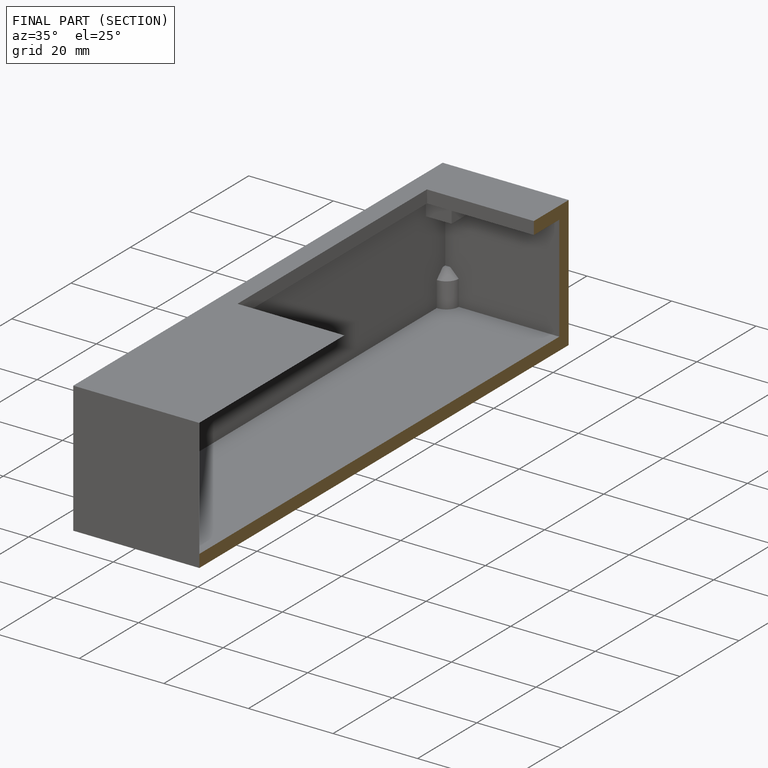
[diagram: finished part — half-section view (interior)]
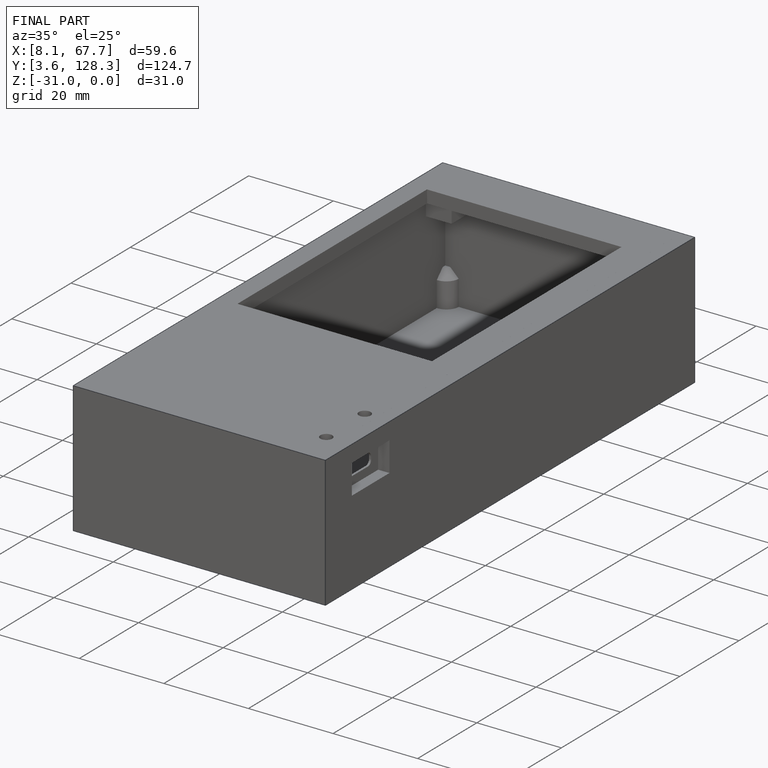
[diagram: finished part — iso view with bounding-box wireframe]
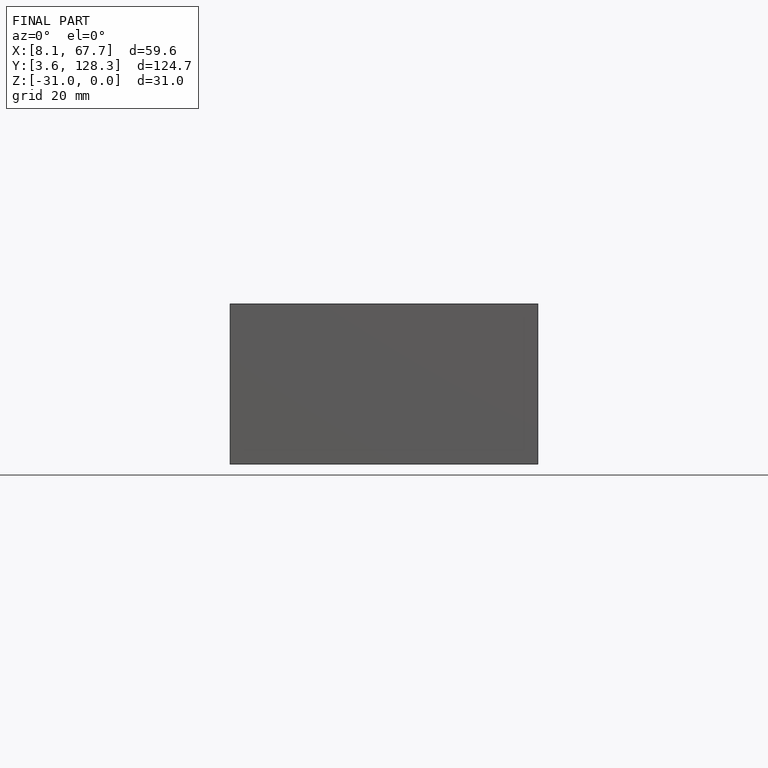
[diagram: finished part — front view with bounding-box wireframe]
